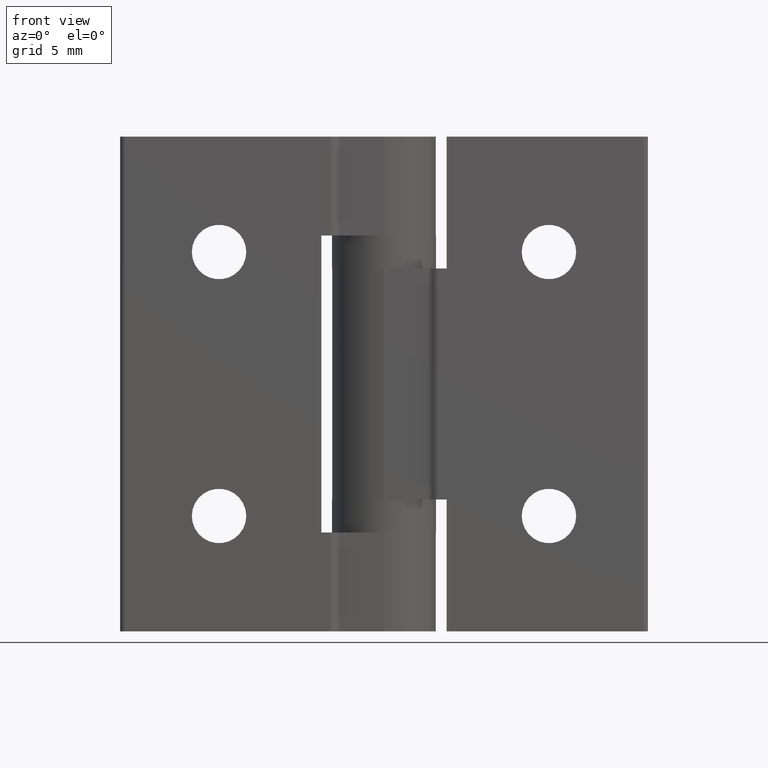
[diagram: clean part render]
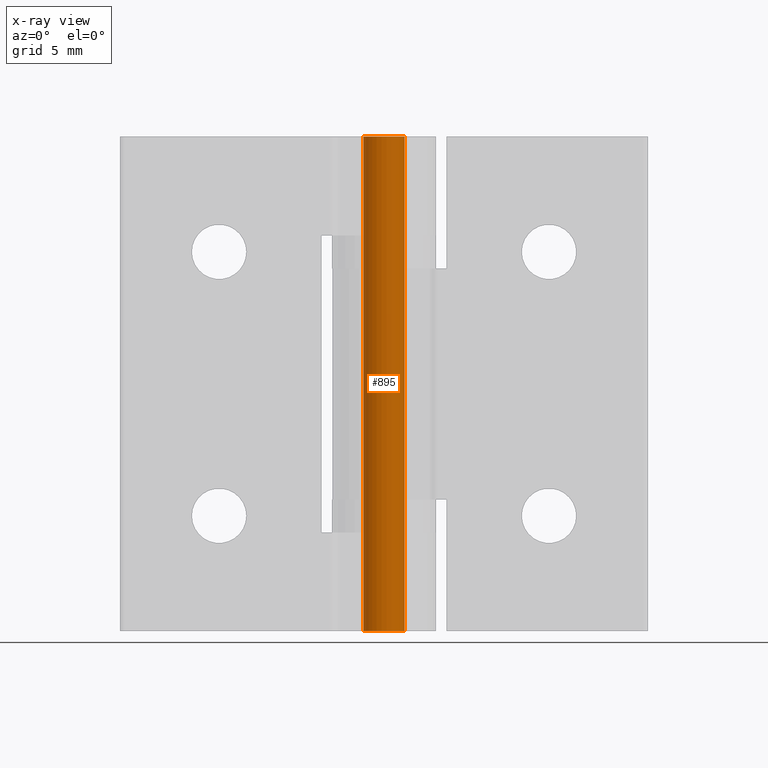
[diagram: x-ray — body ghosted, one internal face saturated and labeled with its STEP entity id]
A machine part, front view, then the same camera in x-ray: the body is ghosted and one INTERNAL B-rep face — a face not visible from any outside direction — is saturated and labeled: STEP entity #895.
In plain terms, the highlighted cylindrical surface (bore or boss wall) has radius 1.25 mm, axis along (0, 0, -1).
Its self-contained STEP definition (entity closure, byte-faithful):
#80=FACE_BOUND('',#234,.T.);
#153=FACE_OUTER_BOUND('',#233,.T.);
#233=EDGE_LOOP('',(#820));
#234=EDGE_LOOP('',(#821));
#407=CIRCLE('',#1003,1.25);
#408=CIRCLE('',#1004,1.25);
#489=VERTEX_POINT('',#1538);
#490=VERTEX_POINT('',#1540);
#600=EDGE_CURVE('',#489,#489,#407,.T.);
#601=EDGE_CURVE('',#490,#490,#408,.T.);
#820=ORIENTED_EDGE('',*,*,#600,.F.);
#821=ORIENTED_EDGE('',*,*,#601,.T.);
#846=CYLINDRICAL_SURFACE('',#1002,1.25);
#895=ADVANCED_FACE('',(#153,#80),#846,.T.);
#1002=AXIS2_PLACEMENT_3D('',#1537,#1274,#1275);
#1003=AXIS2_PLACEMENT_3D('',#1539,#1276,#1277);
#1004=AXIS2_PLACEMENT_3D('',#1541,#1278,#1279);
#1274=DIRECTION('center_axis',(0.,0.,-1.));
#1275=DIRECTION('ref_axis',(-1.,0.,0.));
#1276=DIRECTION('center_axis',(0.,0.,-1.));
#1277=DIRECTION('ref_axis',(-1.,0.,0.));
#1278=DIRECTION('center_axis',(0.,0.,-1.));
#1279=DIRECTION('ref_axis',(-1.,0.,0.));
#1537=CARTESIAN_POINT('Origin',(0.,0.,0.));
#1538=CARTESIAN_POINT('',(1.25,1.53080849893419E-16,-30.));
#1539=CARTESIAN_POINT('Origin',(0.,0.,-30.));
#1540=CARTESIAN_POINT('',(1.25,1.53080849893419E-16,0.));
#1541=CARTESIAN_POINT('Origin',(0.,0.,0.));